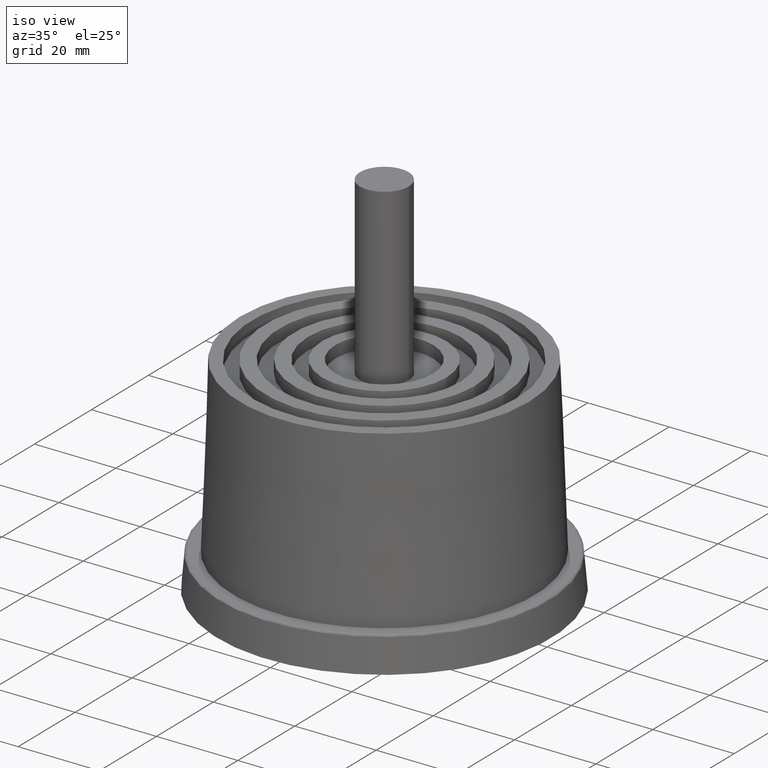
[diagram: clean part render]
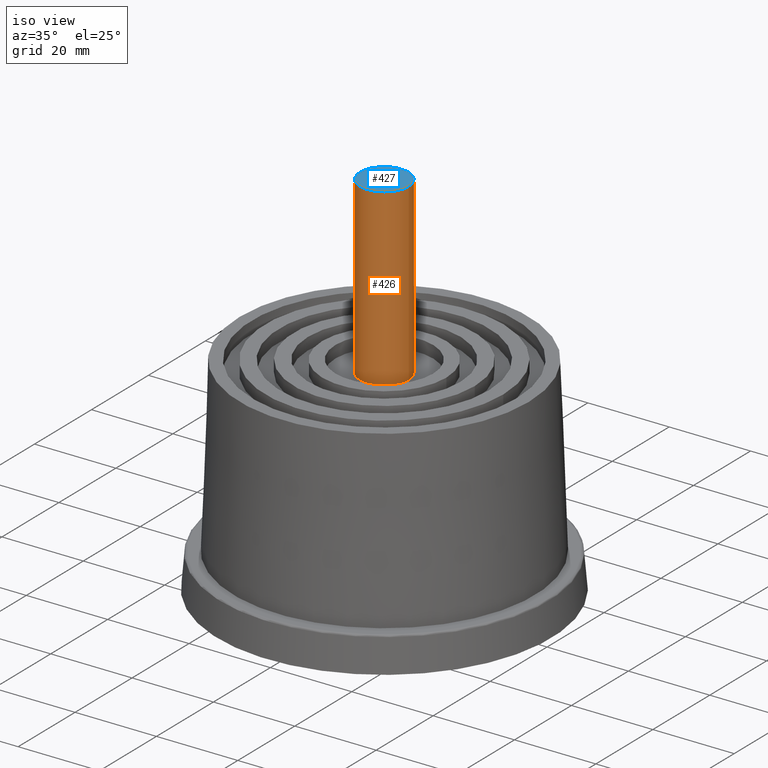
[diagram: same view with the hole feature highlighted: cylindrical wall and planar end face, labeled with their STEP entity ids]
A machine part, iso view. The highlighted faces form one hole feature of diameter 12 mm: the cylindrical wall (entity #426, orange) and its adjacent planar end face (entity #427, blue) — they share a circular edge in the B-rep.
Wall:
#39=FACE_BOUND('',#122,.T.);
#79=FACE_OUTER_BOUND('',#121,.T.);
#121=EDGE_LOOP('',(#326));
#122=EDGE_LOOP('',(#327));
#203=CIRCLE('',#471,6.);
#204=CIRCLE('',#472,6.);
#244=VERTEX_POINT('',#723);
#245=VERTEX_POINT('',#725);
#285=EDGE_CURVE('',#244,#244,#203,.T.);
#286=EDGE_CURVE('',#245,#245,#204,.T.);
#326=ORIENTED_EDGE('',*,*,#285,.F.);
#327=ORIENTED_EDGE('',*,*,#286,.F.);
#408=CYLINDRICAL_SURFACE('',#470,6.);
#426=ADVANCED_FACE('',(#79,#39),#408,.T.);
#470=AXIS2_PLACEMENT_3D('',#722,#555,#556);
#471=AXIS2_PLACEMENT_3D('',#724,#557,#558);
#472=AXIS2_PLACEMENT_3D('',#726,#559,#560);
#555=DIRECTION('center_axis',(0.,0.,1.));
#556=DIRECTION('ref_axis',(-1.,0.,0.));
#557=DIRECTION('center_axis',(0.,0.,1.));
#558=DIRECTION('ref_axis',(-1.,0.,0.));
#559=DIRECTION('center_axis',(0.,0.,-1.));
#560=DIRECTION('ref_axis',(-1.,0.,0.));
#722=CARTESIAN_POINT('Origin',(0.,0.,48.));
#723=CARTESIAN_POINT('',(6.,7.34788079488412E-16,91.));
#724=CARTESIAN_POINT('Origin',(0.,0.,91.));
#725=CARTESIAN_POINT('',(6.,7.34788079488412E-16,48.));
#726=CARTESIAN_POINT('Origin',(0.,0.,48.));
End face:
#18=PLANE('',#473);
#80=FACE_OUTER_BOUND('',#123,.T.);
#123=EDGE_LOOP('',(#328));
#203=CIRCLE('',#471,6.);
#244=VERTEX_POINT('',#723);
#285=EDGE_CURVE('',#244,#244,#203,.T.);
#328=ORIENTED_EDGE('',*,*,#285,.T.);
#427=ADVANCED_FACE('',(#80),#18,.T.);
#471=AXIS2_PLACEMENT_3D('',#724,#557,#558);
#473=AXIS2_PLACEMENT_3D('',#727,#561,#562);
#557=DIRECTION('center_axis',(0.,0.,1.));
#558=DIRECTION('ref_axis',(-1.,0.,0.));
#561=DIRECTION('center_axis',(0.,0.,1.));
#562=DIRECTION('ref_axis',(1.,0.,0.));
#723=CARTESIAN_POINT('',(6.,7.34788079488412E-16,91.));
#724=CARTESIAN_POINT('Origin',(0.,0.,91.));
#727=CARTESIAN_POINT('Origin',(-3.69627624575467E-16,-1.54197642309049E-16,
91.));